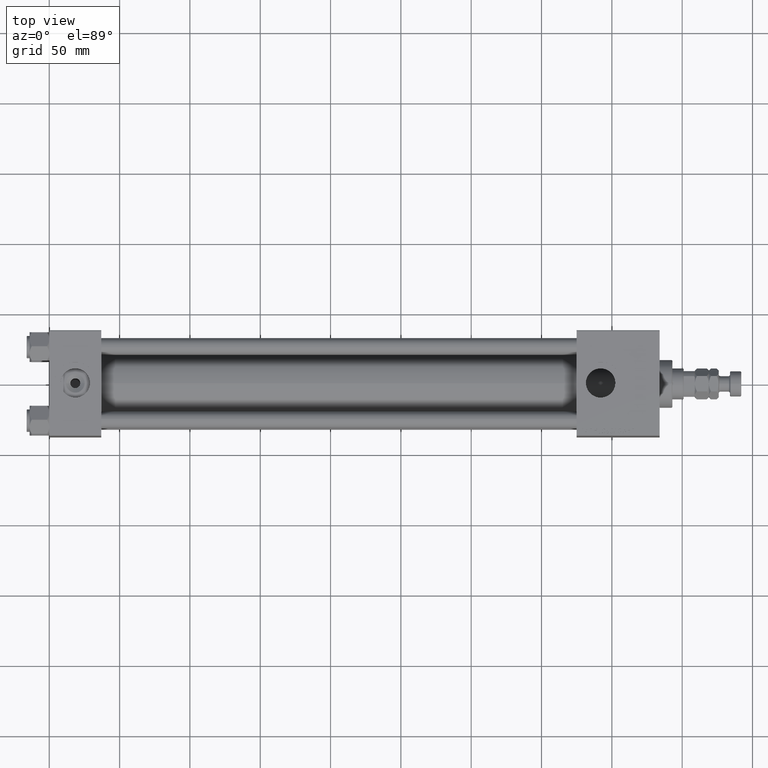
[diagram: clean part render]
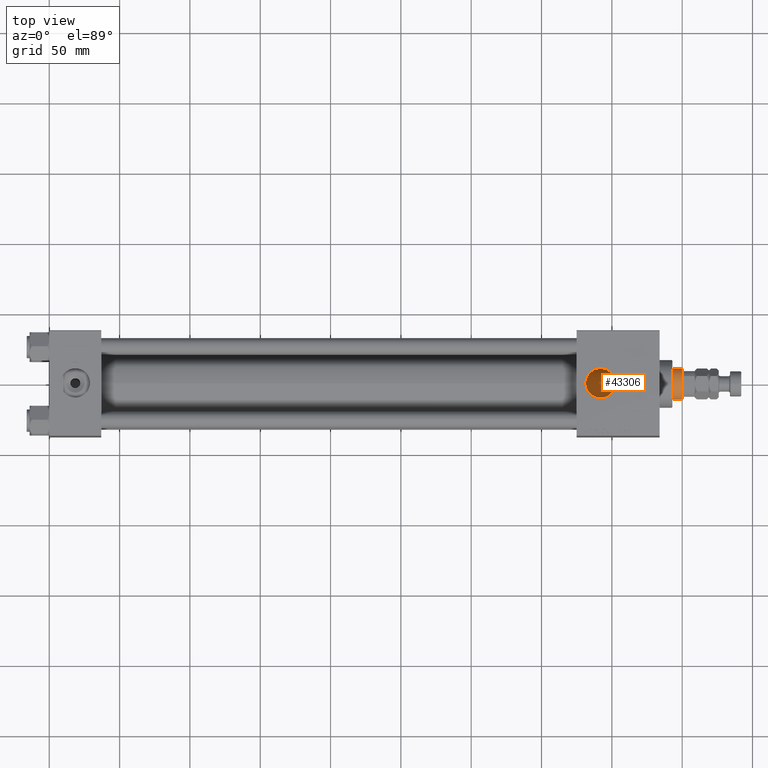
[diagram: same view with one face highlighted and labeled with its STEP entity id]
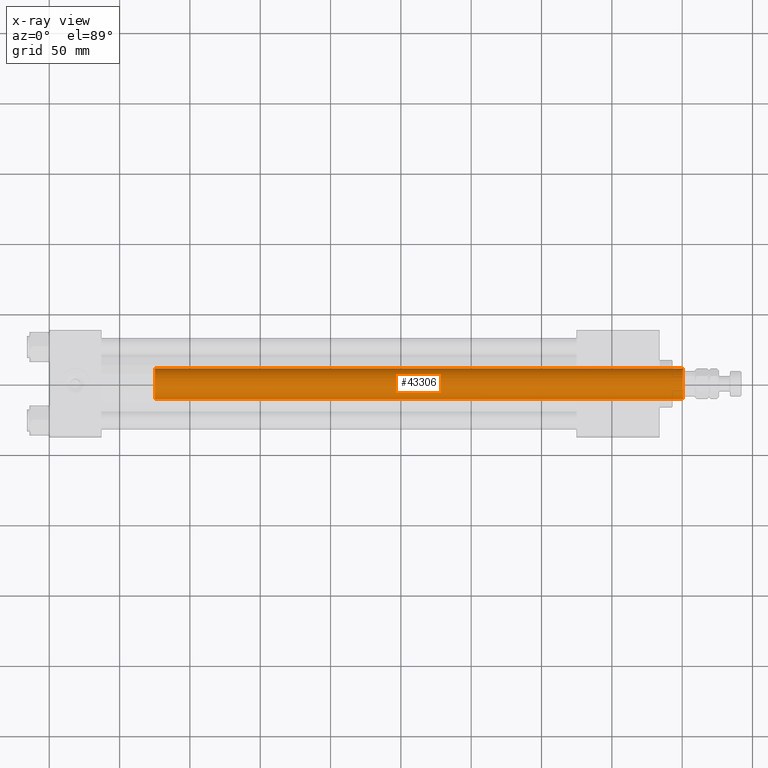
[diagram: x-ray of the same camera — body ghosted, the highlighted face saturated]
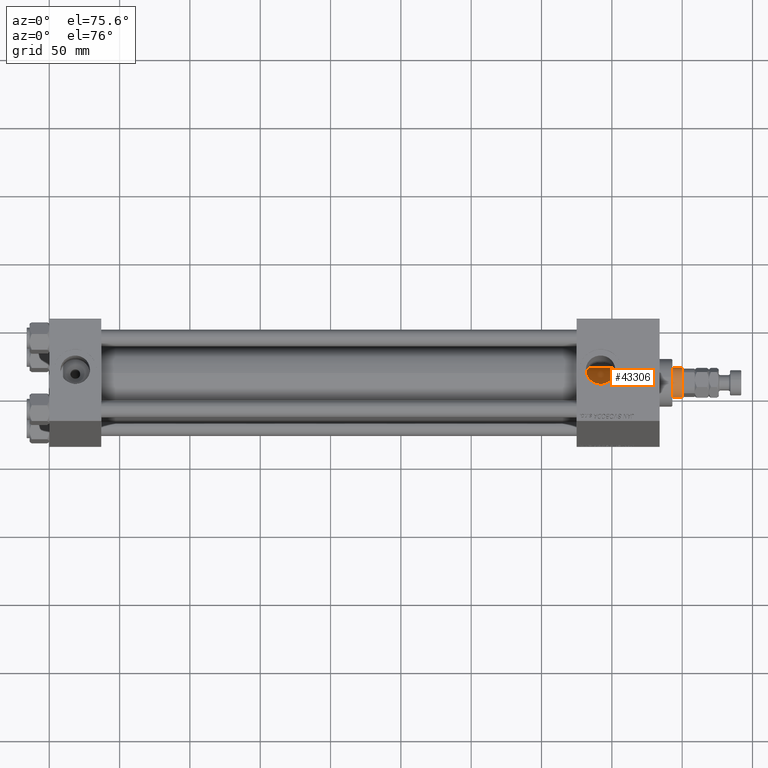
[diagram: same view with one face highlighted and labeled with its STEP entity id]
A machine part, top view. The second image highlights one B-rep face of the part: STEP entity #43306.
The next image is the same camera in x-ray: the body ghosted, the highlighted face saturated — about 0% of this face is hidden behind the body in this view.
A second angle (auxiliary view) of the same face is appended — the face is thin or edge-on in the first view.
In plain terms, the highlighted cylindrical surface (edge-blend (fillet) strip) has radius 11 mm, axis along (-1, 0, 0).
Its self-contained STEP definition (entity closure, byte-faithful):
#3384 = CARTESIAN_POINT ( 'NONE',  ( -11.00000000000000000, 0.000000000000000000, 414.0000000000000000 ) ) ;
#3709 = AXIS2_PLACEMENT_3D ( 'NONE', #53085, #15617, #32291 ) ;
#6050 = CARTESIAN_POINT ( 'NONE',  ( 11.00000000000000000, 1.347111479062088405E-15, 413.4999999999998863 ) ) ;
#7215 = DIRECTION ( 'NONE',  ( -0.000000000000000000, -0.000000000000000000, -1.000000000000000000 ) ) ;
#9179 = AXIS2_PLACEMENT_3D ( 'NONE', #22634, #9538, #47773 ) ;
#9538 = DIRECTION ( 'NONE',  ( -0.000000000000000000, -0.000000000000000000, -1.000000000000000000 ) ) ;
#10272 = EDGE_CURVE ( 'NONE', #31791, #20295, #27259, .T. ) ;
#10496 = LINE ( 'NONE', #31244, #12835 ) ;
#10843 = CARTESIAN_POINT ( 'NONE',  ( -11.00000000000000000, 0.000000000000000000, 38.00000000000000000 ) ) ;
#11184 = CIRCLE ( 'NONE', #38274, 11.00000000000000000 ) ;
#12711 = ORIENTED_EDGE ( 'NONE', *, *, #10272, .T. ) ;
#12835 = VECTOR ( 'NONE', #35369, 1000.000000000000000 ) ;
#15617 = DIRECTION ( 'NONE',  ( 0.000000000000000000, 0.000000000000000000, 1.000000000000000000 ) ) ;
#18789 = DIRECTION ( 'NONE',  ( 0.000000000000000000, 0.000000000000000000, -1.000000000000000000 ) ) ;
#20295 = VERTEX_POINT ( 'NONE', #25580 ) ;
#20631 = ORIENTED_EDGE ( 'NONE', *, *, #44030, .T. ) ;
#22634 = CARTESIAN_POINT ( 'NONE',  ( 0.000000000000000000, 0.000000000000000000, 414.0000000000000000 ) ) ;
#22935 = VERTEX_POINT ( 'NONE', #32425 ) ;
#24580 = EDGE_CURVE ( 'NONE', #25020, #22935, #11184, .T. ) ;
#25020 = VERTEX_POINT ( 'NONE', #6050 ) ;
#25580 = CARTESIAN_POINT ( 'NONE',  ( 11.00000000000000000, 1.347111479062088405E-15, 38.00000000000000000 ) ) ;
#27259 = CIRCLE ( 'NONE', #3709, 11.00000000000000000 ) ;
#31244 = CARTESIAN_POINT ( 'NONE',  ( 11.00000000000000000, 1.347111479062088405E-15, 414.0000000000000000 ) ) ;
#31791 = VERTEX_POINT ( 'NONE', #10843 ) ;
#32291 = DIRECTION ( 'NONE',  ( 1.000000000000000000, 0.000000000000000000, 0.000000000000000000 ) ) ;
#32425 = CARTESIAN_POINT ( 'NONE',  ( -11.00000000000000000, 0.000000000000000000, 413.4999999999998863 ) ) ;
#32619 = LINE ( 'NONE', #3384, #36244 ) ;
#35369 = DIRECTION ( 'NONE',  ( -0.000000000000000000, -0.000000000000000000, -1.000000000000000000 ) ) ;
#36244 = VECTOR ( 'NONE', #7215, 1000.000000000000000 ) ;
#36927 = ORIENTED_EDGE ( 'NONE', *, *, #24580, .T. ) ;
#38274 = AXIS2_PLACEMENT_3D ( 'NONE', #43406, #18789, #52702 ) ;
#43306 = ADVANCED_FACE ( 'NONE', ( #43407 ), #50829, .T. ) ;
#43406 = CARTESIAN_POINT ( 'NONE',  ( 0.000000000000000000, 0.000000000000000000, 413.4999999999998863 ) ) ;
#43407 = FACE_OUTER_BOUND ( 'NONE', #48890, .T. ) ;
#44030 = EDGE_CURVE ( 'NONE', #22935, #31791, #32619, .T. ) ;
#47735 = EDGE_CURVE ( 'NONE', #25020, #20295, #10496, .T. ) ;
#47773 = DIRECTION ( 'NONE',  ( -1.000000000000000000, 0.000000000000000000, 0.000000000000000000 ) ) ;
#48890 = EDGE_LOOP ( 'NONE', ( #53810, #36927, #20631, #12711 ) ) ;
#50829 = CYLINDRICAL_SURFACE ( 'NONE', #9179, 11.00000000000000000 ) ;
#52702 = DIRECTION ( 'NONE',  ( 1.000000000000000000, 0.000000000000000000, 0.000000000000000000 ) ) ;
#53085 = CARTESIAN_POINT ( 'NONE',  ( 0.000000000000000000, 0.000000000000000000, 38.00000000000000000 ) ) ;
#53810 = ORIENTED_EDGE ( 'NONE', *, *, #47735, .F. ) ;